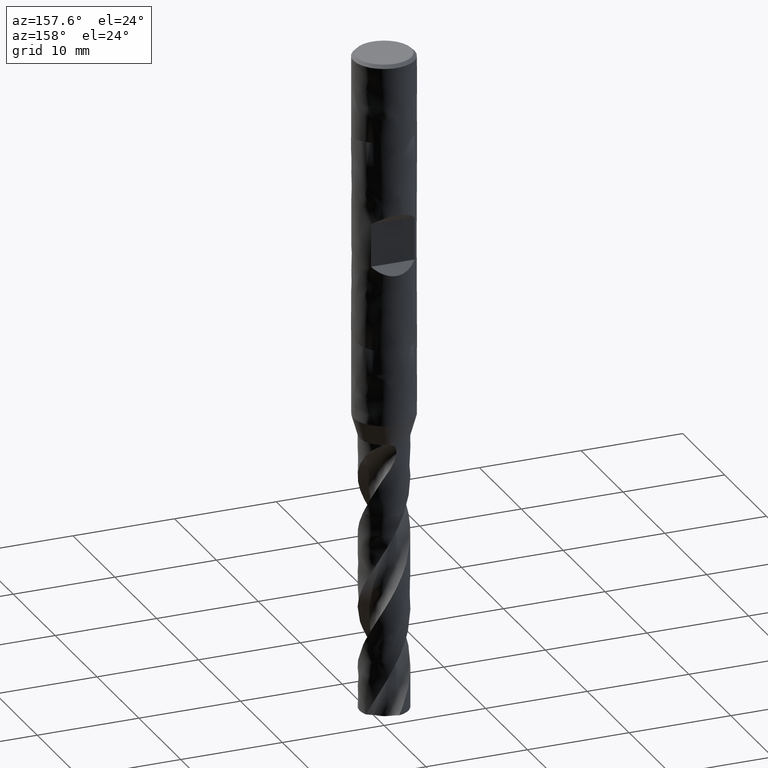
[diagram: clean part render]
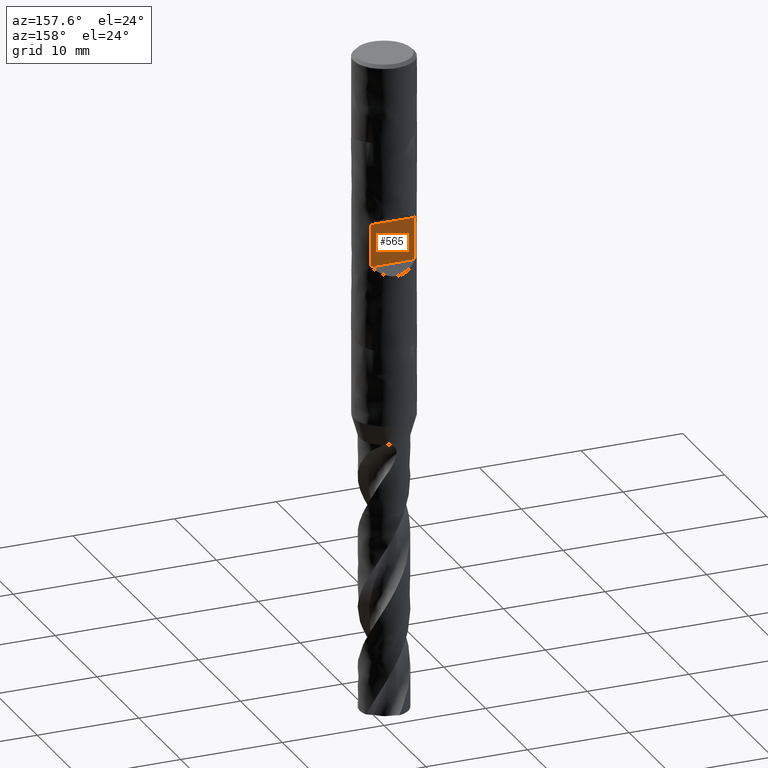
[diagram: same view with one face highlighted and labeled with its STEP entity id]
A machine part, auxiliary view. The second image highlights one B-rep face of the part: STEP entity #565.
In plain terms, the highlighted planar face has unit normal (0, 1, 0).
Its self-contained STEP definition (entity closure, byte-faithful):
#378 = EDGE_CURVE('', #379, #381, #383, .T.);
#379 = VERTEX_POINT('', #380);
#380 = CARTESIAN_POINT('', (2.14242852856286, 2.1, -15.9));
#381 = VERTEX_POINT('', #382);
#382 = CARTESIAN_POINT('', (2.14242852856286, 2.1, -20.1));
#383 = LINE('', #384, #385);
#384 = CARTESIAN_POINT('', (2.14242852856286, 2.1, -15.9));
#385 = VECTOR('', #386, 4.2);
#386 = DIRECTION('', (0., 4.44089209850063E-16, -4.2));
#389 = VERTEX_POINT('', #390);
#390 = CARTESIAN_POINT('', (-2.14242852856286, 2.1, -15.9));
#466 = EDGE_CURVE('', #389, #467, #469, .T.);
#467 = VERTEX_POINT('', #468);
#468 = CARTESIAN_POINT('', (-2.14242852856286, 2.1, -20.1));
#469 = LINE('', #470, #471);
#470 = CARTESIAN_POINT('', (-2.14242852856286, 2.1, -15.9));
#471 = VECTOR('', #472, 4.2);
#472 = DIRECTION('', (0., 0., -4.2));
#565 = ADVANCED_FACE('', (#566), #582, .T.);
#566 = FACE_OUTER_BOUND('', #567, .T.);
#567 = EDGE_LOOP('', (#568, #569, #575, #576));
#568 = ORIENTED_EDGE('', *, *, #378, .T.);
#569 = ORIENTED_EDGE('', *, *, #570, .T.);
#570 = EDGE_CURVE('', #381, #467, #571, .T.);
#571 = LINE('', #572, #573);
#572 = CARTESIAN_POINT('', (2.14242852856286, 2.1, -20.1));
#573 = VECTOR('', #574, 4.28485705712571);
#574 = DIRECTION('', (-4.28485705712571, 4.44089209850063E-16, 0.));
#575 = ORIENTED_EDGE('', *, *, #466, .F.);
#576 = ORIENTED_EDGE('', *, *, #577, .F.);
#577 = EDGE_CURVE('', #379, #389, #578, .T.);
#578 = LINE('', #579, #580);
#579 = CARTESIAN_POINT('', (2.14242852856286, 2.1, -15.9));
#580 = VECTOR('', #581, 4.28485705712571);
#581 = DIRECTION('', (-4.28485705712571, 4.44089209850063E-16, 0.));
#582 = PLANE('', #583);
#583 = AXIS2_PLACEMENT_3D('', #584, #585, #586);
#584 = CARTESIAN_POINT('', (3., 2.1, -20.1));
#585 = DIRECTION('', (0., 1., 1.05735526154777E-16));
#586 = DIRECTION('', (-1., 0., 0.));